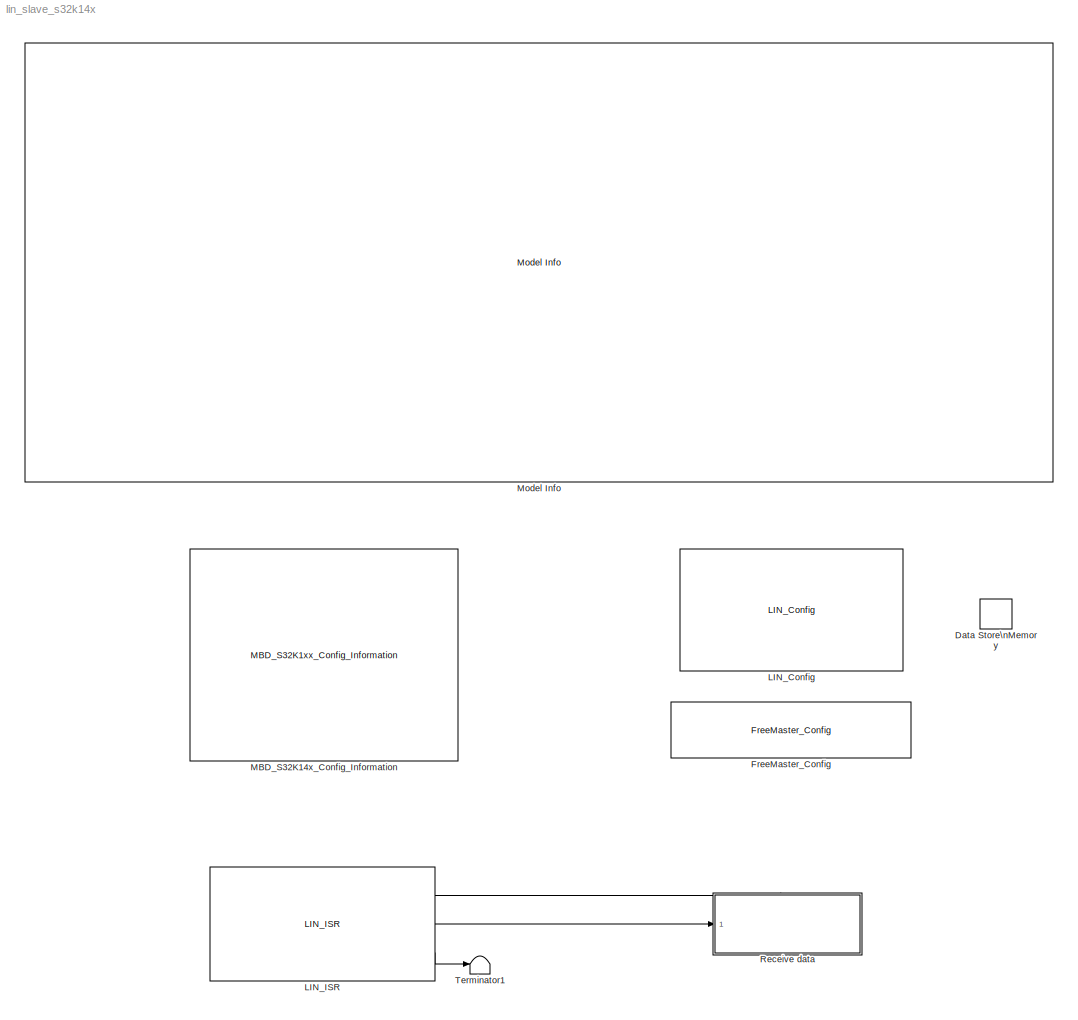
MODEL lin_slave_s32k14x
KIND model
CONFIG InitFcn = mbd_s32k_consistency_checks(bdroot(gcs));
BLOCK [DataStoreMemory] Data Store\nMemory
  DataStoreName = recv
  InitialValue = [0 0 0 0 0 0]
  OutDataTypeStr = uint8
  ReadBeforeWriteMsg = warning
  SID = 18
  ShowAdditionalParam = off
  WriteAfterReadMsg = warning
  WriteAfterWriteMsg = warning
BLOCK [Reference] FreeMaster_Config  REF=mbd_s32k1xx_ec_toolbox/Utility Blocks/FreeMaster_Config
  Ports = []
  SID = 33
  SourceBlock = mbd_s32k1xx_ec_toolbox/Utility Blocks/FreeMaster_Config
  SourceType = fm_s32k_config
  baudrate = 115200
  comm_buffer_size = 255
  comm_buffer_size_auto = on
  comm_rqueue_size = 32
  comm_rqueue_size_default = on
  interface = LPUART1
  isr_prio = 1
  max_rec_vars = 8
  max_scope_vars = 8
  mode = Short Interrupt
  rec_buff_size = 1024
  rec_timebase = 0
  rec_timebase_unit = seconds
  rxd = PTC6: [LPUART1_RX | Receive]
  show_adv_opts = on
  txd = PTC7: [LPUART1_TX | Transmit]
  use_recorder = on
  use_scope = on
BLOCK [Reference] LIN_Config  REF=mbd_s32k1xx_ec_toolbox/Communication Blocks/LIN Blocks/LIN_Config
  Ports = []
  Priority = 1
  SID = 2
  SourceBlock = mbd_s32k1xx_ec_toolbox/Communication Blocks/LIN Blocks/LIN_Config
  SourceType = lin_s32k_config
  autobaud_enable = None
  baudrate = 9600
  cts = PTC12: [LPUART2_CTS | Clear To Send (bar)]
  instance = 2
  node_function = SLAVE
  rts = PTC13: [LPUART2_RTS | Request To Send]
  rx = PTD6: [LPUART2_RX | Receive]
  tx = PTD7: [LPUART2_TX | Transmit]
BLOCK [Reference] LIN_ISR  REF=mbd_s32k1xx_ec_toolbox/Communication Blocks/LIN Blocks/LIN_ISR
  Ports = [0, 3]
  Priority = 20
  SID = 3
  SourceBlock = mbd_s32k1xx_ec_toolbox/Communication Blocks/LIN Blocks/LIN_ISR
  SourceType = lin_s32k_isr
  instance = 2
BLOCK [Reference] MBD_S32K14x_Config_Information  REF=mbd_s32k1xx_ec_toolbox/MBD_S32K1xx_Config_Information
  ADC_PcrCheckEnDis = on
  AMMCLIB_PcrCheckEnDis = on
  CMP_PcrCheckEnDis = on
  CSEc_PcrCheckEnDis = off
  ConfigParams_PcrCheckEnDis = on
  FM_PcrCheckEnDis = on
  FTM_Dual_Edge_Inputs_PcrCheckEnDis = on
  FTM_Hall_Sensor_Inputs_PcrCheckEnDis = on
  FTM_Input_Edge_Inputs_PcrCheckEnDis = on
  FTM_PWM_PcrCheckEnDis = on
  FTM_Quadrature_Inputs_PcrCheckEnDis = on
  FlexCAN_PcrCheckEnDis = on
  FlexIO_PcrCheckEnDis = on
  GPIO_InputPcrCheckEnDis = on
  GPIO_OutputPcrCheckEnDis = on
  LIN_PcrCheckEnDis = on
  LPI2C_PcrCheckEnDis = on
  LPSPI_PcrCheckEnDis = on
  LPTMR_PcrCheckEnDis = on
  LPUART_PcrCheckEnDis = on
  ModelRef_PcrCheckEnDis = on
  PDB0_PcrCheckEnDis = on
  PIT_PcrCheckEnDis = on
  Ports = []
  Profile_PcrCheckEnDis = on
  RTC_PcrCheckEnDis = on
  SBC_PcrCheckEnDis = on
  SID = 1
  SourceBlock = mbd_s32k1xx_ec_toolbox/MBD_S32K1xx_Config_Information
  SourceType = MBDTBX_EC_S32K
  WDOG_PcrCheckEnDis = on
  config_params = []
  disp_str = Target : S32K144-48KB_SRAM\nPackage : 100-pin\nSystem clock : 80 MHz\nXTAL clock : External 8 MHz\nCompiler : IAR\nTarget Type : FLASH\nDownload Code after build : off\nStep Tick Interrupt Priority : 15
  ds_import_enable = on
  eDMA_PcrCheckEnDis = on
  gcc_target_assemble_opts = -mcpu=cortex-m4 -mthumb -mfloat-abi=hard -mfpu=fpv4-sp-d16 -g
  gcc_target_compile_opts = -mcpu=cortex-m4 -mthumb -mfloat-abi=hard -mfpu=fpv4-sp-d16 -O1 -g -gstrict-dwarf
  gcc_target_default_lcf = on
  gcc_target_link_opts = -mcpu=cortex-m4 -mthumb -mfloat-abi=hard -mfpu=fpv4-sp-d16
  gcc_target_user_lcf = S32K144_48_flash.ld
  ghs_target_assemble_opts = -cpu=cortexm4f -fpu=vfpv4_d16
  ghs_target_compile_opts = -cpu=cortexm4f -thumb -DARM_MATH_CM4 -fpu=vfpv4_d16 -fsingle -Ogeneral -Wundef -Wimplicit-int -Wshadow -Wtrigraphs --no_commons --gnu_asm -gnu99 -gdwarf-2 -G
  ghs_target_default_lcf = on
  ghs_target_link_opts = -cpu=cortexm4f -thumb -fpu=vfpv4_d16
  ghs_target_user_lcf = S32K144_48_flash.ld
  iar_target_assemble_opts = --cpu Cortex-M4F --thumb --fpu VFPv4_sp
  iar_target_compile_opts = --cpu=Cortex-M4F --thumb --fpu=VFPv4_sp -Ol -e --debug --dlib_config normal
  iar_target_default_lcf = on
  iar_target_link_opts = --no_exceptions --vfe --inline
  iar_target_user_lcf = S32K144_48_flash.icf
  mbdt_ver = 0
  mcu_steptick_prio = 0
  mcu_steptick_timer = LPIT Channel 0
  mcu_system_clock_freq = 80
  mcu_target_name = S32K144
  mcu_target_package = 64-LQFP
  mcu_target_sram_size = 48KB
  mcu_xtal_freq = External 8
  pil_download_enable = off
  pil_download_rate = 57600
  pil_opensda_drive = Custom
  pil_opensda_drive_custom = D
  pil_uart_instance = 0
  pil_uart_rx = PTA2: [LPUART0_RX | Receive]
  pil_uart_tx = PTA3: [LPUART0_TX | Transmit]
  rbl_com_port = Custom
  rbl_com_port_custom = COM1
  rbl_download_enable = on
  rbl_download_interface = OpenSDA
  rbl_restart_request = off
  rbl_start_delay = 5000000
  target_compiler = GCC
  target_memory = FLASH
BLOCK [Reference] Model Info  REF=simulink/Model-Wide\nUtilities/Model Info
  DisplayStringWithTags = %<ModelName>\n%<Description>
  Frame = on
  HorizontalTextAlignment = Center
  LeftAlignmentValue = 0.5
  MaskDisplayString = lin_slave_s32k14x\\nBasic example for demonstrating LIN blocks function. The demo requires 2 boards, one running the code from this model, one running the code from the master model.\\n\\nIn this application, the slave waits for the master to send a header. Once this happens, the LIN ISR will be triggered by the LIN Callback block.\\nInside the subsystem triggered this way, LIN Receive frame data ...<+1797ch>
  Ports = []
  SID = 34
  SourceBlock = simulink/Model-Wide\nUtilities/Model Info
  SourceProductBaseCode = SL
  SourceProductName = Simulink
  SourceType = CMBlock
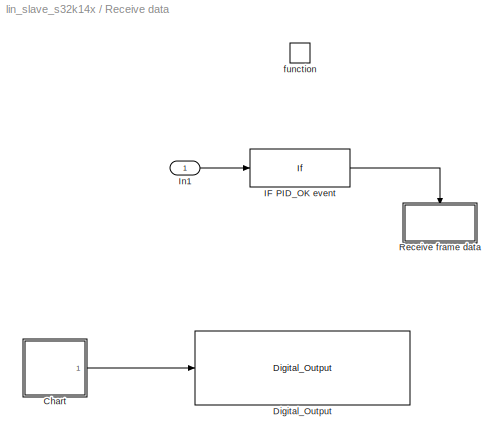
BLOCK [SubSystem] Receive data
  Ports = [1, 0, 0, 1]
  RTWSystemCode = Nonreusable function
  RequestExecContextInheritance = off
  SID = 4
  TreatAsAtomicUnit = on
  Variant = off
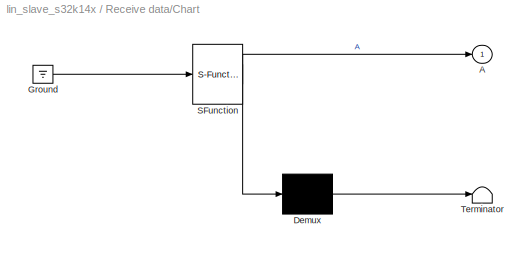
BLOCK [SubSystem] Receive data/Chart
  ErrorFcn = Stateflow.Translate.translate
  PermitHierarchicalResolution = ExplicitOnly
  Ports = [0, 1]
  RequestExecContextInheritance = off
  SFBlockType = Chart
  SID = 6
  TreatAsAtomicUnit = on
  Variant = off
BLOCK [Outport] Receive data/Chart/ A
  IconDisplay = Port number
  SID = 6::6
BLOCK [Demux] Receive data/Chart/ Demux 
  Outputs = 1
  Ports = [1, 1]
  SID = 6::40
BLOCK [Ground] Receive data/Chart/ Ground 
  SID = 6::42
BLOCK [S-Function] Receive data/Chart/ SFunction 
  EnableBusSupport = off
  FunctionName = sf_sfun
  PortCounts = [1 2]
  Ports = [1, 2]
  SFcnIsStateOwnerBlock = off
  SFunctionDeploymentMode = off
  SID = 6::39
  Tag = Stateflow S-Function lin_slave_s32k14x 2
BLOCK [Terminator] Receive data/Chart/ Terminator 
  SID = 6::41
BLOCK [Reference] Receive data/Digital_Output  REF=mbd_s32k1xx_ec_toolbox/GPIO Blocks/Digital_Output
  Ports = [1]
  SID = 8
  SourceBlock = mbd_s32k1xx_ec_toolbox/GPIO Blocks/Digital_Output
  SourceType = gpio_s32k_output
  drive_strength = Low
  gpio_pin = PTD15: [PTD15 | Port D I/O]
  init_val = Low
BLOCK [If] Receive data/IF PID_OK event
  IfExpression = u1 == 6
  Ports = [1, 1]
  SID = 41
  ShowElse = off
BLOCK [Inport] Receive data/In1
  IconDisplay = Port number
  SID = 42
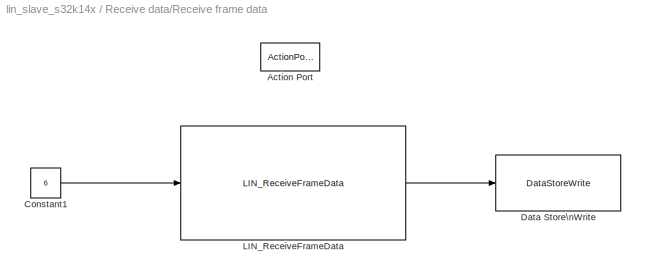
BLOCK [SubSystem] Receive data/Receive frame data
  Ports = [0, 0, 0, 0, 0, 0, 0, 1]
  RequestExecContextInheritance = off
  SID = 37
  TreatAsAtomicUnit = on
  Variant = off
BLOCK [ActionPort] Receive data/Receive frame data/Action Port
  SID = 39
BLOCK [Constant] Receive data/Receive frame data/Constant1
  OutDataTypeStr = uint32
  SID = 15
  Value = 6
BLOCK [DataStoreWrite] Receive data/Receive frame data/Data Store\nWrite
  DataStoreName = recv
  Ports = [1]
  SID = 16
BLOCK [Reference] Receive data/Receive frame data/LIN_ReceiveFrameData  REF=mbd_s32k1xx_ec_toolbox/Communication Blocks/LIN Blocks/LIN_ReceiveFrameData
  Ports = [1, 1]
  Priority = 1
  SID = 17
  SourceBlock = mbd_s32k1xx_ec_toolbox/Communication Blocks/LIN Blocks/LIN_ReceiveFrameData
  SourceType = lin_s32k_receive_data
  instance = 2
BLOCK [TriggerPort] Receive data/function
  Ports = []
  SID = 5
  StatesWhenEnabling = held
  TriggerType = function-call
  VariantControl = Variant
BLOCK [Terminator] Terminator1
  SID = 20
LINE LIN_ISR:1 -> Receive data:trigger
LINE LIN_ISR:2 -> Receive data:1
LINE LIN_ISR:3 -> Terminator1:1
LINE Receive data/Chart/ Demux :1 -> Receive data/Chart/ Terminator :1
LINE Receive data/Chart/ Ground :1 -> Receive data/Chart/ SFunction :1
LINE Receive data/Chart/ SFunction :1 -> Receive data/Chart/ Demux :1
LINE Receive data/Chart/ SFunction :2 -> Receive data/Chart/ A:1
LINE Receive data/Chart:1 -> Receive data/Digital_Output:1
LINE Receive data/IF PID_OK event:1 -> Receive data/Receive frame data:ifaction
LINE Receive data/In1:1 -> Receive data/IF PID_OK event:1
LINE Receive data/Receive frame data/Constant1:1 -> Receive data/Receive frame data/LIN_ReceiveFrameData:1
LINE Receive data/Receive frame data/LIN_ReceiveFrameData:1 -> Receive data/Receive frame data/Data Store\nWrite:1
CHART Receive data/Chart states=2 transitions=3
  STATE_LABEL 'A'
  STATE_LABEL 'A1'
